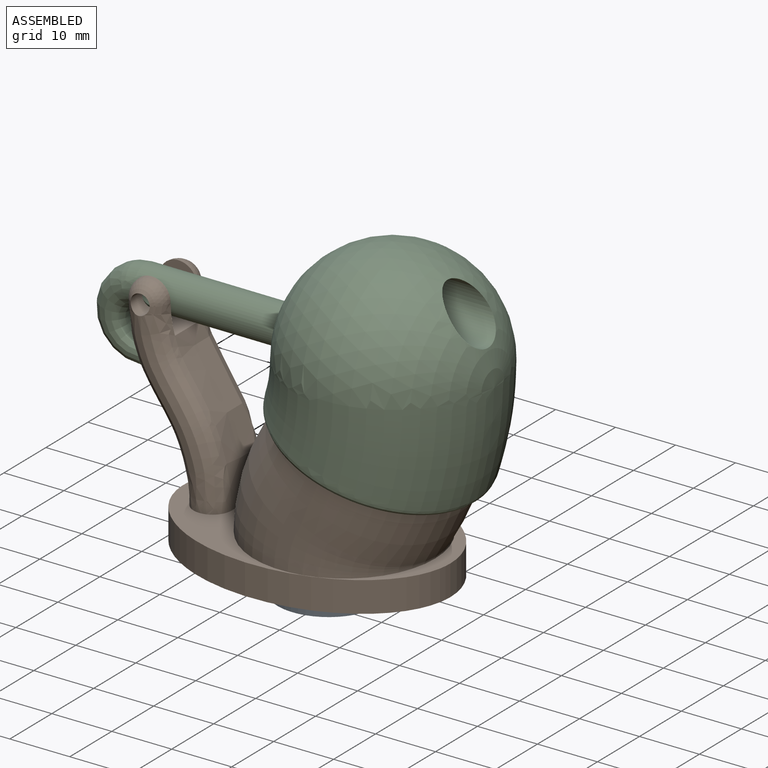
[diagram: assembled view]
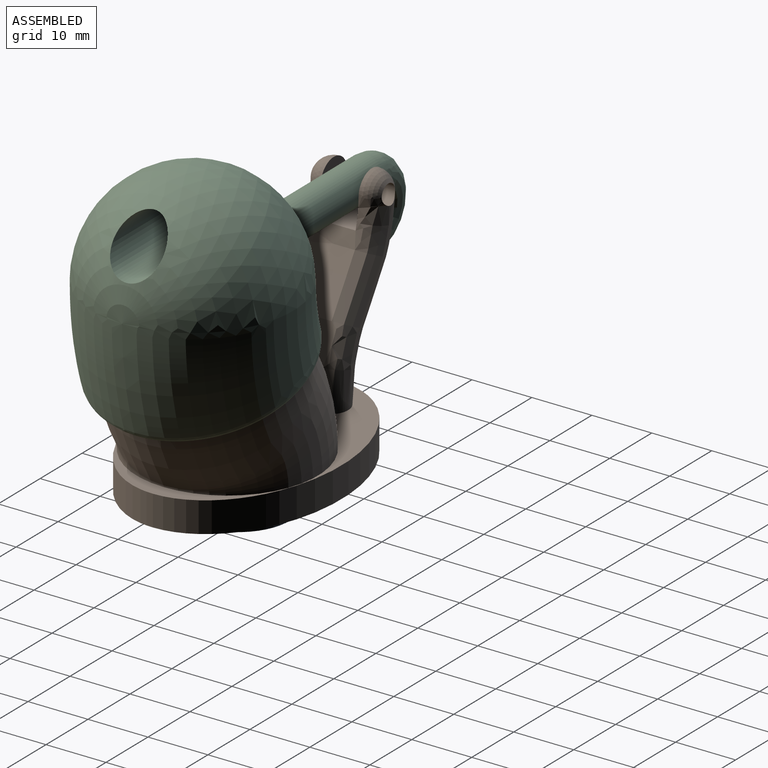
[diagram: assembled view, second angle]
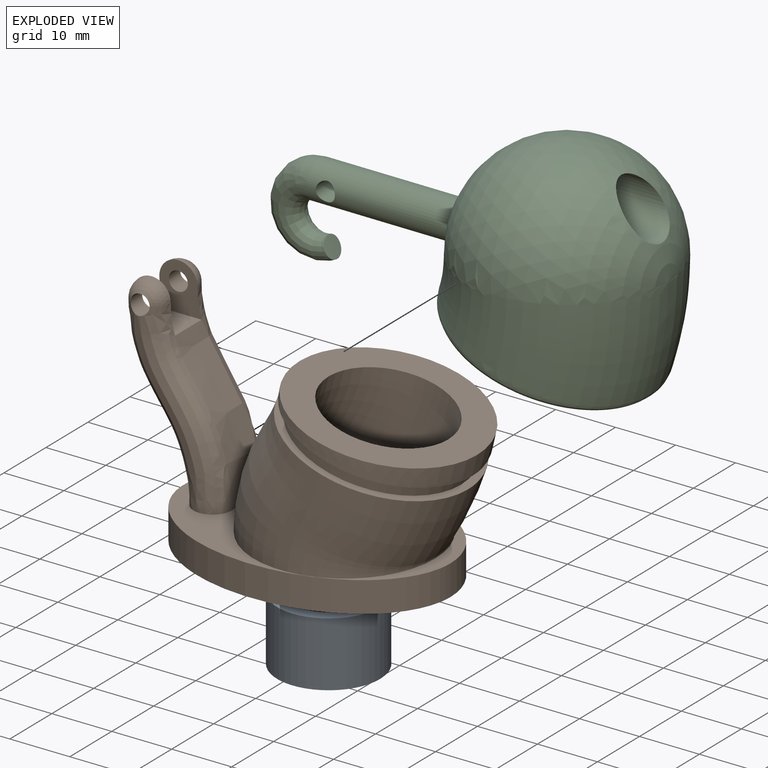
[diagram: exploded view]
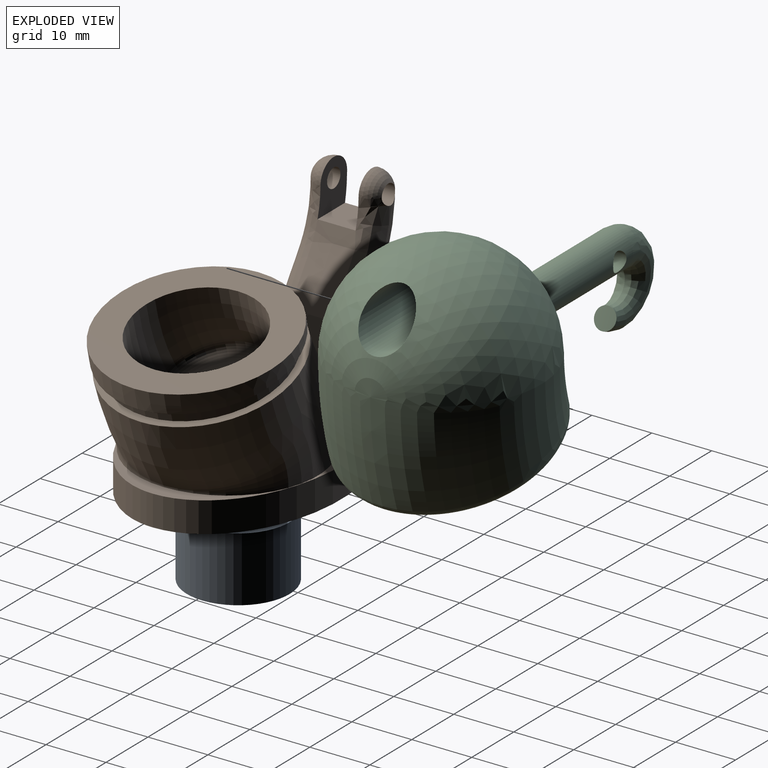
[diagram: exploded view, second angle]
ASSEMBLY  parts=3 mates=4
PART A: 8 faces, bbox 17.1x17.1x10.8 mm
  f0: cylinder r=4.1mm len=8.2mm, axis (0,0,1), area 49.1mm2, adj f4,f7
  f1: cylinder r=6.6mm len=13.2mm, axis (0,0,-1), area 53.9mm2, adj f3,f4
  f2: cylinder r=8.57mm len=17.15mm, axis (0,0,-1), area 583.1mm2, adj f3,f5
  f3: plane 17.15x17.15mm, normal (0,0,1), area 94mm2, adj f1,f2
  f4: plane 13.2x13.2mm, normal (0,0,1), area 84mm2, adj f0,f1
  f5: plane 17.15x17.15mm, normal (0,0,-1), area 104.2mm2, adj f2,f6
  f6: cylinder r=6.35mm len=12.7mm, axis (0,0,-1), area 304mm2, adj f5,f7
  f7: plane 12.7x12.7mm, normal (0,0,-1), area 73.9mm2, adj f0,f6
PART B: 30 faces, bbox 56.5x33x38.1 mm
  f0: cylinder r=8.57mm len=17.15mm, axis (0,0,-1), area 171mm2, adj f27,f29
  f1: plane 6.93x6.64mm, normal (0.53,0,0.85), area 4.7mm2, adj f2,f26,f27
  f2: cylinder r=5.71mm len=12.39mm, axis (0.53,0,0.85), area 158.4mm2, adj f1,f3,f23,f25,f26,f27
  f3: plane 6.93x6.64mm, normal (0.53,0,0.85), area 4.7mm2, adj f2,f26,f27
  f4: cylinder r=1.59mm len=3.18mm, axis (0,-1,0), area 27.4mm2, adj f16,f18,f21
  f5: plane 44.45x31.75mm, normal (0,0,1), area 318.9mm2, adj f7,f9,f16
  f6: torus R=38.1mm, axis (0,1,0), area 832.9mm2, adj f9,f11
  f7: extruded ~44.45x31.75mm, area 612.3mm2, adj f5,f8
  f8: plane 44.45x31.75mm, normal (0,0,-1), area 720.5mm2, adj f7,f28
  f9: torus R=15.82mm, axis (0,-1,0), area 839.2mm2, adj f5,f6
  f10: cylinder r=13.84mm len=27.69mm, axis (0.29,0,0.96), area 198.8mm2, adj f11,f12
  f11: plane 30.74x29.43mm, normal (0.29,0,0.96), area 115.9mm2, adj f6,f10
  f12: plane 30.74x29.44mm, normal (-0.29,0,-0.96), area 115.9mm2, adj f10,f15
  f13: torus R=38.1mm, axis (0,1,0), area 849mm2, adj f14,f24
  f14: plane 30.23x29.57mm, normal (0.21,0,0.98), area 393.3mm2, adj f13,f15
  f15: torus R=38.1mm, axis (0,1,0), area 201.4mm2, adj f12,f14
  f16: bspline ~28.58x16.51mm, area 939.4mm2, adj f4,f5,f17,f18,f19,f20,f21,f22
  f17: sphere r=3.17mm, area 27.4mm2, adj f16,f19,f20
  f18: sphere r=3.17mm, area 27.4mm2, adj f4,f16,f21
  f19: cylinder r=1.59mm len=3.18mm, axis (0,-1,0), area 27.4mm2, adj f16,f17,f20
  f20: plane 7.97x7.08mm, normal (0,-1,0), area 38.5mm2, adj f16,f17,f19,f22
  f21: plane 7.97x7.08mm, normal (0,1,0), area 38.5mm2, adj f4,f16,f18,f22
  f22: plane 6.78x6.58mm, normal (0,0,1), area 41.6mm2, adj f16,f20,f21
  f23: plane 13.97x11.85mm, normal (0.53,0,0.85), area 50.7mm2, adj f2,f24
  f24: torus R=6.99mm, axis (-0.53,0,-0.85), area 282.2mm2, adj f13,f23
  f25: plane 3.96x0.71mm, normal (0,0,-1), area 0mm2, adj f2,f26
  f26: cylinder r=4.85mm len=9.7mm, axis (0,0,-1), area 31.2mm2, adj f1,f2,f3,f25,f27
  f27: plane 18.44x18.44mm, normal (0,0,-1), area 138.5mm2, adj f0,f1,f2,f3,f26
  f28: cylinder r=11.11mm len=22.23mm, axis (0,0,-1), area 221.7mm2, adj f8,f29
  f29: plane 22.23x22.23mm, normal (0,0,-1), area 157.1mm2, adj f0,f28
PART C: 19 faces, bbox 67.1x33.7x35.6 mm
  f0: sphere r=16.83mm, area 1690.2mm2, adj f6,f7,f17
  f1: cylinder r=3.7mm len=7.4mm, axis (1,0,0), area 11.6mm2, adj f14,f18
  f2: bspline ~15.62x14.04mm, area 287.5mm2, adj f7,f16
  f3: cylinder r=2.1mm len=5.7mm, axis (1,0,0), area 39.9mm2, adj f11,f12,f13,f14
  f4: torus R=38.1mm, axis (0,1,0), area 1273.5mm2, adj f5,f9
  f5: plane 31.12x29.26mm, normal (-0.34,0,-0.94), area 31mm2, adj f4,f8
  f6: torus R=38.1mm, axis (0,1,0), area 1256.7mm2, adj f0,f7,f8
  f7: cylinder r=3.17mm len=24.75mm, axis (-1,0,0), area 474.7mm2, adj f0,f2,f6,f15
  f8: bspline ~33.67x32.03mm, area 204.1mm2, adj f5,f6
  f9: torus R=12.06mm, axis (0,0,-1), area 441.4mm2, adj f4,f10
  f10: plane 24.13x24.13mm, normal (0,0,-1), area 425.6mm2, adj f9,f11
  f11: cylinder r=3.17mm len=7.62mm, axis (0,0,-1), area 141.1mm2, adj f3,f10,f12
  f12: plane 6.35x5.69mm, normal (0,0,-1), area 14mm2, adj f3,f11,f13
  f13: plane 3.89x1.31mm, normal (1,0,0), area 3.7mm2, adj f3,f12
  f14: plane 7.4x7.4mm, normal (1,0,0), area 29.2mm2, adj f1,f3
  f15: cylinder r=1.59mm len=6.35mm, axis (0,-1,0), area 59.2mm2, adj f7
  f16: cylinder r=22.86mm len=3.62mm, axis (0,-1,0), area 10.3mm2, adj f2
  f17: cylinder r=4.22mm len=16.89mm, axis (-1,0,0), area 363.6mm2, adj f0,f18
  f18: plane 8.43x8.43mm, normal (1,0,0), area 12.8mm2, adj f1,f17
PLACE A rot(axis=(0,0,1),0deg) t=(3.44,12.47,8.58)mm
PLACE B t=(1.55,12.47,3.53)mm fixed
PLACE C rot(axis=(0,1,0),0.2deg) t=(-23.85,12.43,37.19)mm
MATE planar B.f4 <-> C.f15  axis (0,-1,0) through (-23.85,15.64,37.19)mm
MATE cylindrical C.f15 <-> B.f4  axis (0,-1,0) through (-23.85,9.21,37.19)mm
MATE cylindrical A.f2 <-> B.f0  axis (0,0,-1) through (3.44,12.47,4.47)mm
MATE planar A.f2 <-> B.f27  axis (0,0,1) through (3.44,12.47,9.88)mm
